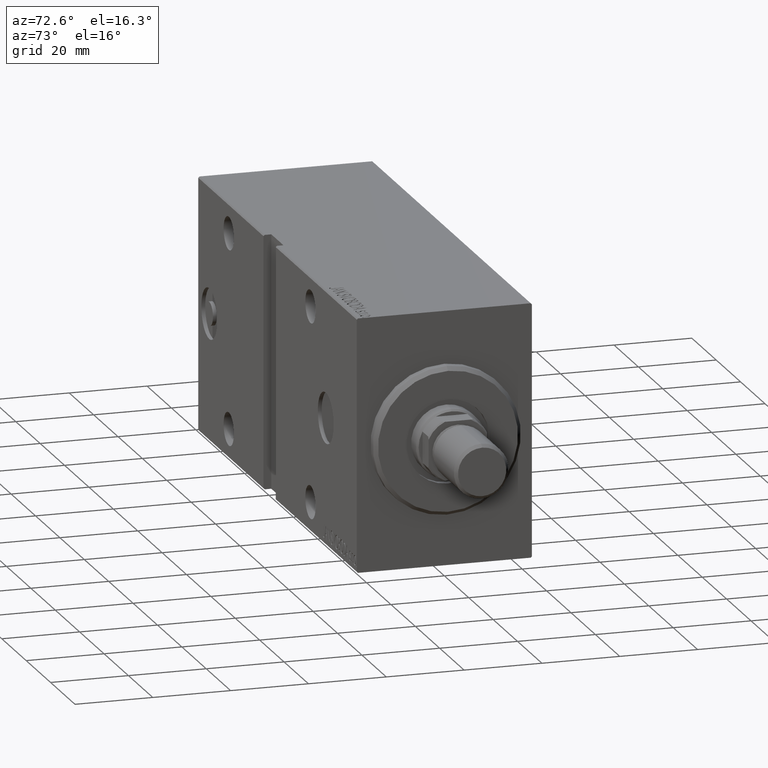
[diagram: clean part render]
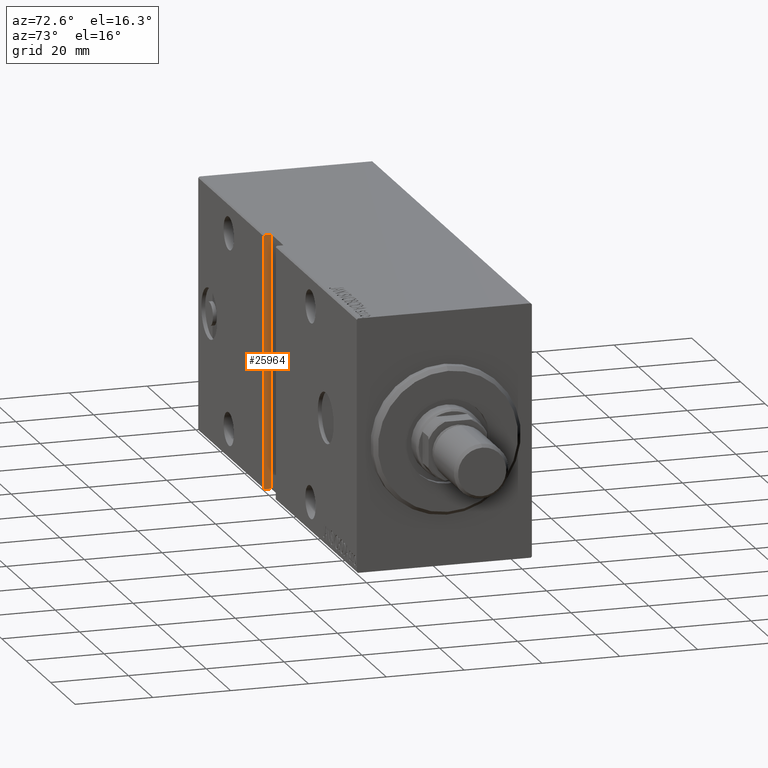
[diagram: same view with one face highlighted and labeled with its STEP entity id]
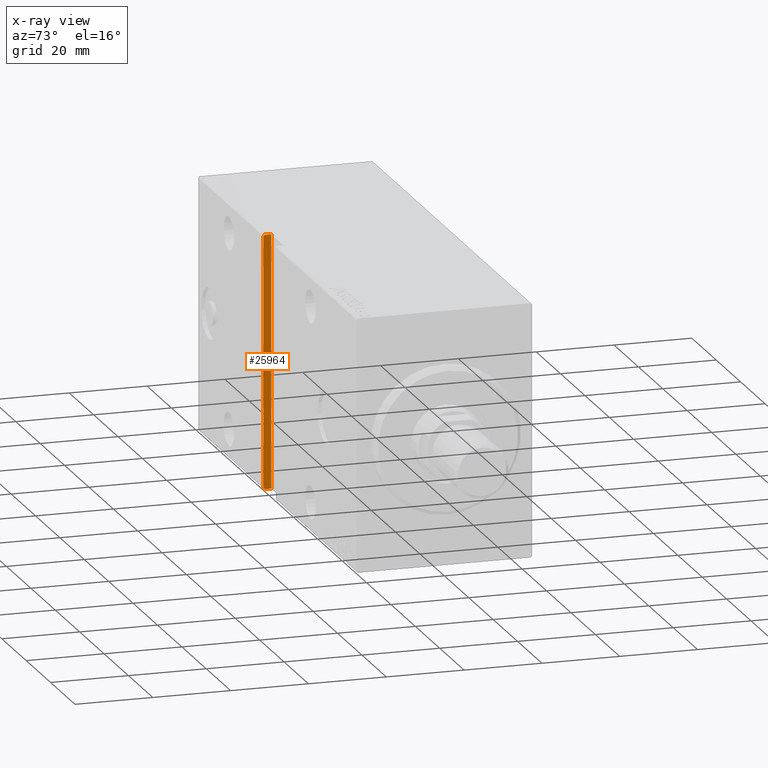
[diagram: x-ray of the same camera — body ghosted, the highlighted face saturated]
A machine part, auxiliary view. The second image highlights one B-rep face of the part: STEP entity #25964.
The next image is the same camera in x-ray: the body ghosted, the highlighted face saturated — about 0% of this face is hidden behind the body in this view.
In plain terms, the highlighted planar face has unit normal (-1, 0, 0).
Its self-contained STEP definition (entity closure, byte-faithful):
#839 = LINE ( 'NONE', #11157, #10904 ) ;
#2316 = CARTESIAN_POINT ( 'NONE',  ( 76.50000000000000000, 22.49999999999999645, 32.20000000000000284 ) ) ;
#3770 = VERTEX_POINT ( 'NONE', #24139 ) ;
#4767 = VERTEX_POINT ( 'NONE', #24796 ) ;
#4786 = CARTESIAN_POINT ( 'NONE',  ( 76.50000000000000000, 22.50000000000000355, -32.50000000000009948 ) ) ;
#5249 = LINE ( 'NONE', #9175, #7617 ) ;
#5782 = VERTEX_POINT ( 'NONE', #6307 ) ;
#6307 = CARTESIAN_POINT ( 'NONE',  ( 76.50000000000000000, 22.19999999999999574, -32.50000000000009948 ) ) ;
#7617 = VECTOR ( 'NONE', #22557, 1000.000000000000000 ) ;
#8377 = CARTESIAN_POINT ( 'NONE',  ( 76.50000000000000000, 20.50000000000000000, -32.50000000000000000 ) ) ;
#9058 = DIRECTION ( 'NONE',  ( 0.000000000000000000, 0.000000000000000000, -1.000000000000000000 ) ) ;
#9175 = CARTESIAN_POINT ( 'NONE',  ( 76.50000000000000000, 22.19999999999998863, 32.50000000000000711 ) ) ;
#10415 = EDGE_CURVE ( 'NONE', #11963, #5782, #16505, .T. ) ;
#10904 = VECTOR ( 'NONE', #14220, 1000.000000000000114 ) ;
#11040 = EDGE_LOOP ( 'NONE', ( #19841, #34089, #27879, #28345, #28315, #25678 ) ) ;
#11157 = CARTESIAN_POINT ( 'NONE',  ( 76.50000000000000000, 22.50000000000000355, -32.19999999999999574 ) ) ;
#11436 = EDGE_CURVE ( 'NONE', #4767, #11963, #26676, .T. ) ;
#11734 = VECTOR ( 'NONE', #20449, 1000.000000000000000 ) ;
#11963 = VERTEX_POINT ( 'NONE', #8377 ) ;
#12316 = EDGE_CURVE ( 'NONE', #3770, #22716, #5249, .T. ) ;
#14220 = DIRECTION ( 'NONE',  ( 0.000000000000000000, -0.7071067811865474617, -0.7071067811865474617 ) ) ;
#14930 = CARTESIAN_POINT ( 'NONE',  ( 76.50000000000000000, 22.50000000000000355, -32.19999999999999574 ) ) ;
#16274 = DIRECTION ( 'NONE',  ( 1.000000000000000000, 0.000000000000000000, 0.000000000000000000 ) ) ;
#16505 = LINE ( 'NONE', #20023, #11734 ) ;
#19567 = FACE_OUTER_BOUND ( 'NONE', #11040, .T. ) ;
#19841 = ORIENTED_EDGE ( 'NONE', *, *, #24560, .T. ) ;
#20023 = CARTESIAN_POINT ( 'NONE',  ( 76.50000000000000000, 20.50000000000000355, -32.50000000000009948 ) ) ;
#20449 = DIRECTION ( 'NONE',  ( -0.000000000000000000, 1.000000000000000000, 1.261617073437677752E-16 ) ) ;
#21894 = DIRECTION ( 'NONE',  ( -0.000000000000000000, 1.067522139062648576E-16, -1.000000000000000000 ) ) ;
#22557 = DIRECTION ( 'NONE',  ( -0.000000000000000000, 0.7071067811865556774, -0.7071067811865393571 ) ) ;
#22716 = VERTEX_POINT ( 'NONE', #2316 ) ;
#24139 = CARTESIAN_POINT ( 'NONE',  ( 76.50000000000000000, 22.19999999999998863, 32.50000000000000711 ) ) ;
#24560 = EDGE_CURVE ( 'NONE', #22716, #32816, #28019, .T. ) ;
#24796 = CARTESIAN_POINT ( 'NONE',  ( 76.50000000000000000, 20.49999999999999645, 32.50000000000000711 ) ) ;
#25342 = EDGE_CURVE ( 'NONE', #4767, #3770, #28028, .T. ) ;
#25678 = ORIENTED_EDGE ( 'NONE', *, *, #12316, .T. ) ;
#25718 = PLANE ( 'NONE',  #26740 ) ;
#25964 = ADVANCED_FACE ( 'NONE', ( #19567 ), #25718, .F. ) ;
#26128 = VECTOR ( 'NONE', #38523, 1000.000000000000000 ) ;
#26676 = LINE ( 'NONE', #36109, #34203 ) ;
#26740 = AXIS2_PLACEMENT_3D ( 'NONE', #39068, #16274, #9058 ) ;
#27879 = ORIENTED_EDGE ( 'NONE', *, *, #10415, .F. ) ;
#28019 = LINE ( 'NONE', #4786, #38628 ) ;
#28028 = LINE ( 'NONE', #41375, #26128 ) ;
#28315 = ORIENTED_EDGE ( 'NONE', *, *, #25342, .T. ) ;
#28345 = ORIENTED_EDGE ( 'NONE', *, *, #11436, .F. ) ;
#29322 = DIRECTION ( 'NONE',  ( -0.000000000000000000, 1.067522139062648576E-16, -1.000000000000000000 ) ) ;
#32816 = VERTEX_POINT ( 'NONE', #14930 ) ;
#34089 = ORIENTED_EDGE ( 'NONE', *, *, #35417, .T. ) ;
#34203 = VECTOR ( 'NONE', #29322, 1000.000000000000000 ) ;
#35417 = EDGE_CURVE ( 'NONE', #32816, #5782, #839, .T. ) ;
#36109 = CARTESIAN_POINT ( 'NONE',  ( 76.50000000000000000, 20.50000000000000355, -32.50000000000009948 ) ) ;
#38523 = DIRECTION ( 'NONE',  ( -0.000000000000000000, 1.000000000000000000, 1.261617073437677752E-16 ) ) ;
#38628 = VECTOR ( 'NONE', #21894, 1000.000000000000000 ) ;
#39068 = CARTESIAN_POINT ( 'NONE',  ( 76.50000000000000000, 20.50000000000000355, -32.50000000000009948 ) ) ;
#41375 = CARTESIAN_POINT ( 'NONE',  ( 76.50000000000000000, 20.49999999999999645, 32.50000000000000711 ) ) ;